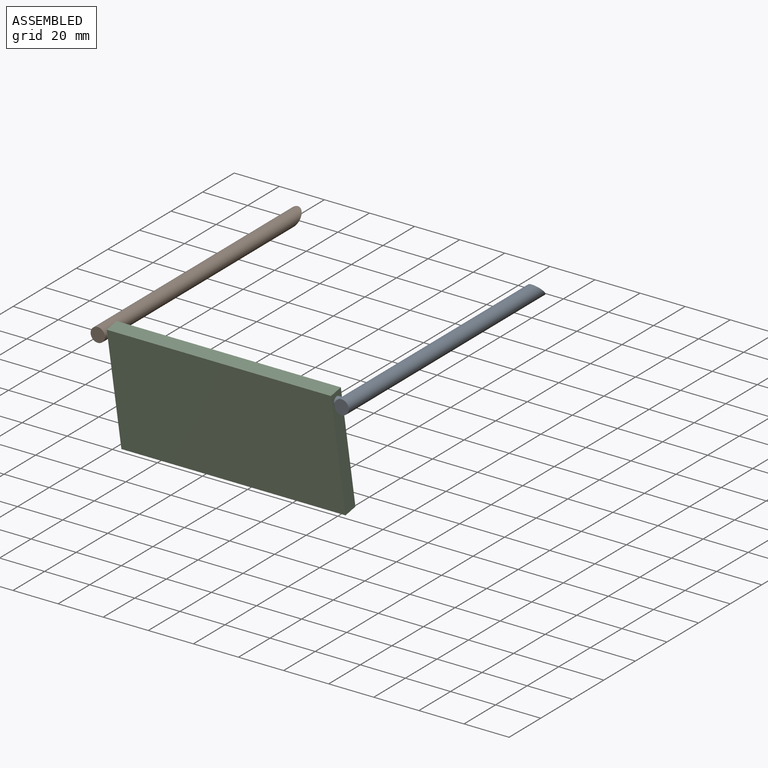
[diagram: assembled view]
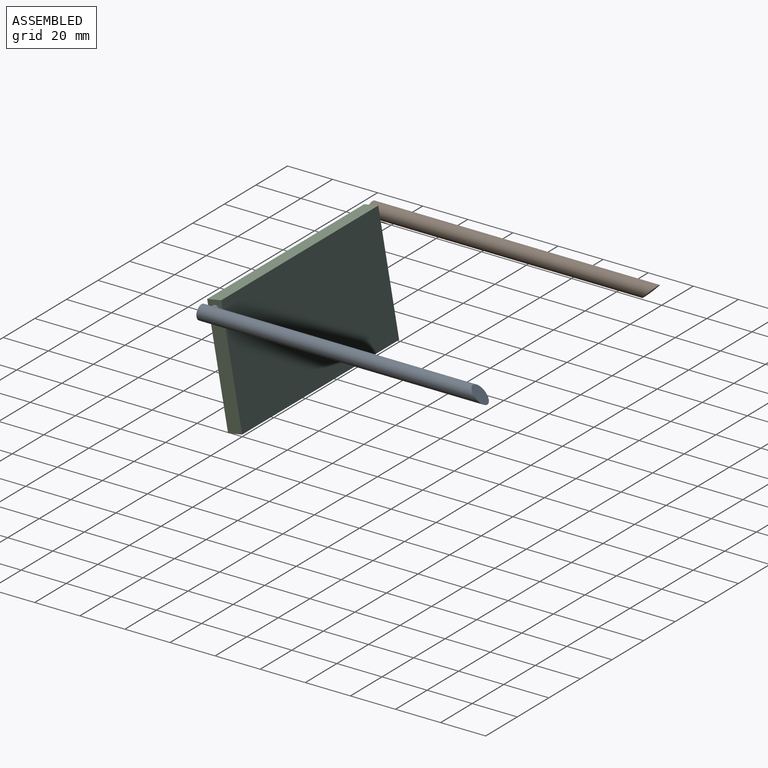
[diagram: assembled view, second angle]
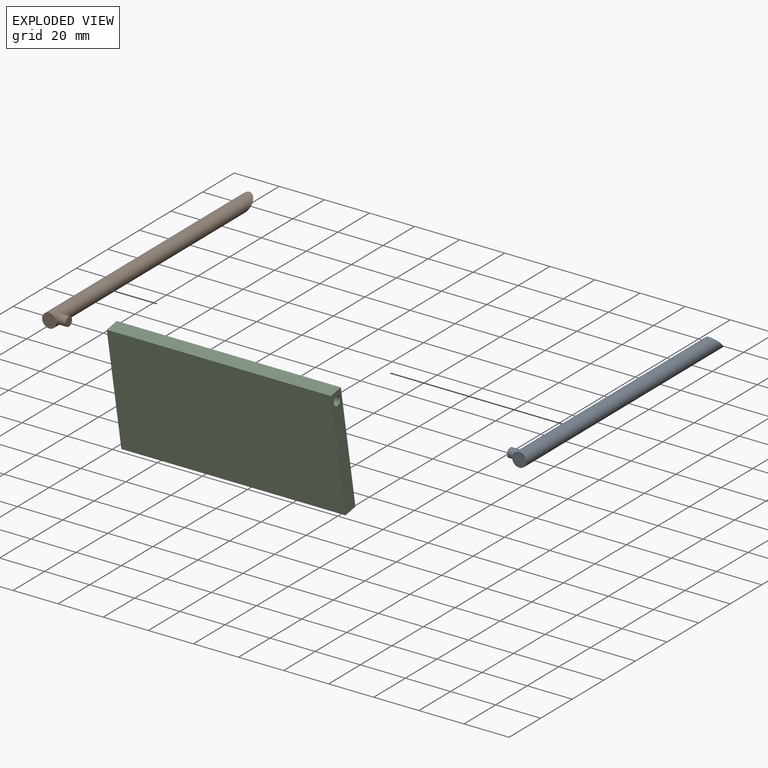
[diagram: exploded view]
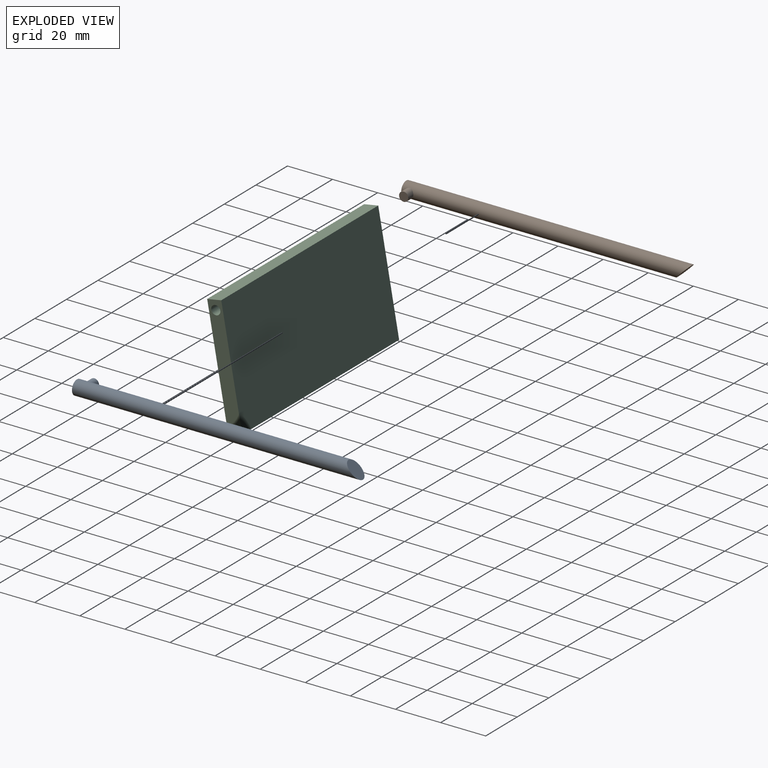
[diagram: exploded view, second angle]
ASSEMBLY  parts=3 mates=2
PART A: 5 faces, bbox 10.9x128.1x7.7 mm
  f0: cylinder r=3.17mm len=126.81mm, axis (0,1,0), area 2450.4mm2, adj f1,f2,f4
  f1: plane 6.35x6.35mm, normal (0,-1,0), area 31.7mm2, adj f0
  f2: cylinder r=2.03mm len=4.06mm, axis (1,0,0), area 45.1mm2, adj f0,f3
  f3: plane 4.06x4.06mm, normal (-1,0,0), area 13mm2, adj f2
  f4: plane 7.69x7.69mm, normal (0,0.71,0.71), area 44.8mm2, adj f0
PART B: same geometry as A
PART C: 15 faces, bbox 99.4x6.4x52.2 mm
  f0: plane 99.42x6.35mm, normal (0,0,-1), area 574.5mm2, adj f1,f2,f4,f5,f10,f11,f12,f13
  f1: plane 52.18x6.35mm, normal (-1,0,0), area 318.4mm2, adj f0,f3,f4,f5,f8
  f2: plane 52.18x6.35mm, normal (1,0,0), area 318.4mm2, adj f0,f3,f4,f5,f6
  f3: plane 99.42x6.35mm, normal (0,0,1), area 631.3mm2, adj f1,f2,f4,f5
  f4: plane 99.42x52.18mm, normal (0,-1,0), area 5187.6mm2, adj f0,f1,f2,f3
  f5: plane 99.42x52.18mm, normal (0,1,0), area 5187.6mm2, adj f0,f1,f2,f3
  f6: cylinder r=2.03mm len=12.7mm, axis (1,0,0), area 162.1mm2, adj f2,f7
  f7: cone r=0mm half-angle=59deg, axis (1,0,0), area 15.1mm2, adj f6
  f8: cylinder r=2.03mm len=12.7mm, axis (-1,0,0), area 162.1mm2, adj f1,f9
  f9: cone r=0mm half-angle=59deg, axis (-1,0,0), area 15.1mm2, adj f8
  f10: plane 25.4x13.22mm, normal (0,-1,0), area 335.7mm2, adj f0,f11,f13,f14
  f11: plane 25.4x4.3mm, normal (-1,0,0), area 109.1mm2, adj f0,f10,f12,f14
  f12: plane 25.4x13.22mm, normal (0,1,0), area 335.7mm2, adj f0,f11,f13,f14
  f13: plane 25.4x4.3mm, normal (1,0,0), area 109.1mm2, adj f0,f10,f12,f14
  f14: plane 13.22x4.3mm, normal (0,0,-1), area 56.8mm2, adj f10,f11,f12,f13
PLACE A t=(-330.35,15.66,106.83)mm
PLACE B rot(axis=(0,-1,0),180deg) t=(-438.53,15.7,106.86)mm
PLACE C rot(axis=(1,0,0),10.2deg) t=(-383.94,-96.27,59.72)mm
MATE revolute C.f8 <-> B.f2  axis (-1,0,0) through (-434.15,-107.99,106.86)mm
MATE revolute C.f6 <-> A.f2  axis (1,0,0) through (-334.73,-108.03,106.83)mm
